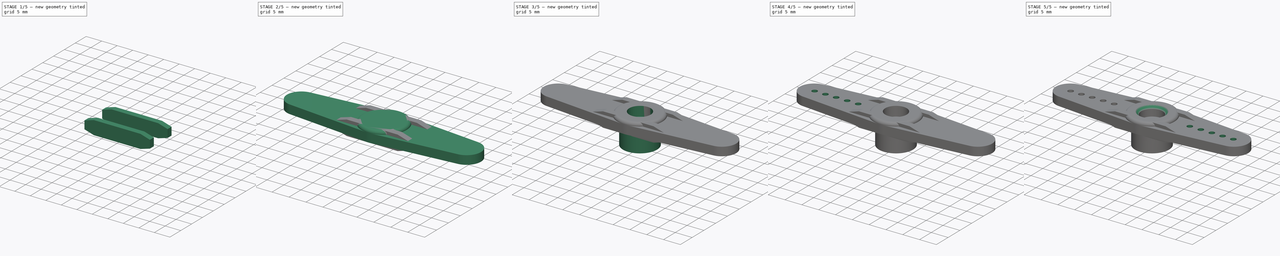
[diagram: build sequence overview — one tinted view per stage of 5, left to right]
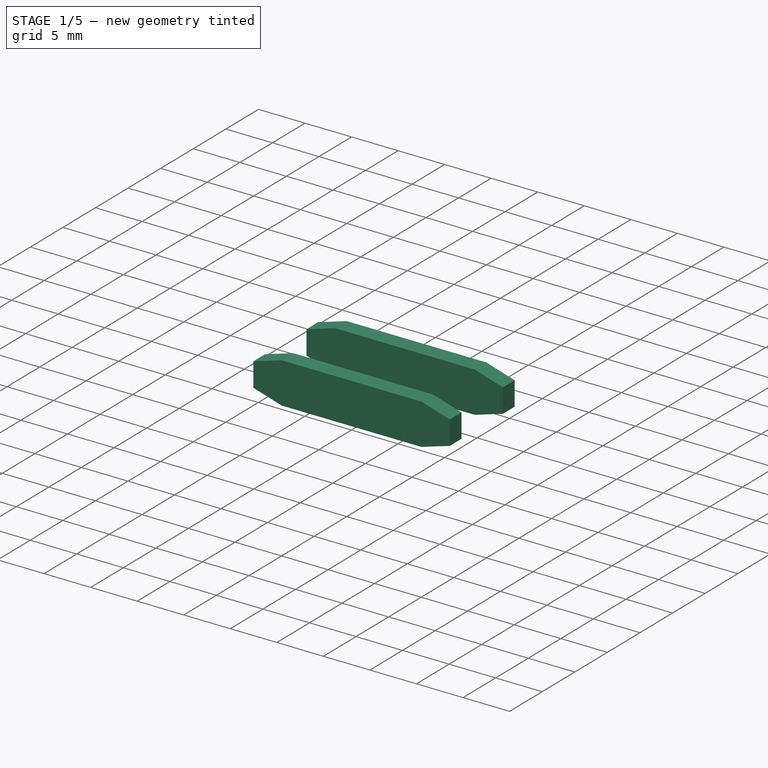
[diagram: stage 1 of 5 — iso view after this stage's code; geometry added in this stage tinted green]
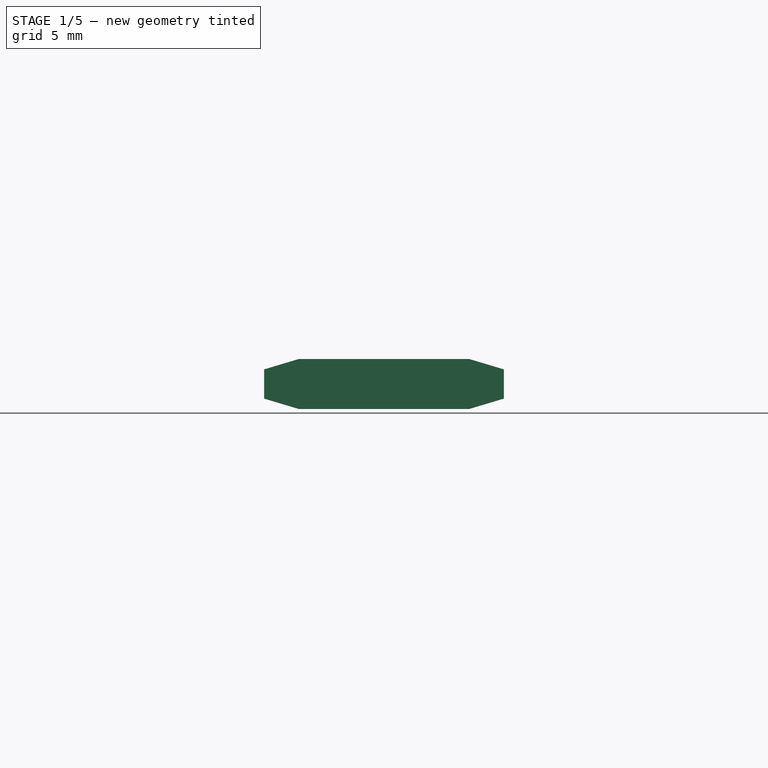
[diagram: stage 1 of 5 — front view after this stage's code; geometry added in this stage tinted green]
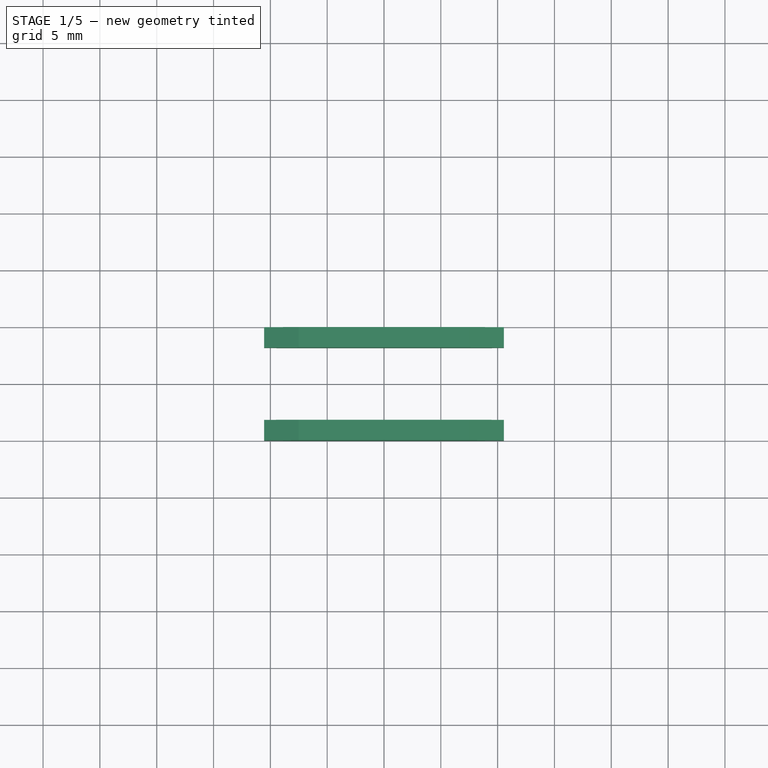
[diagram: stage 1 of 5 — top view after this stage's code; geometry added in this stage tinted green]
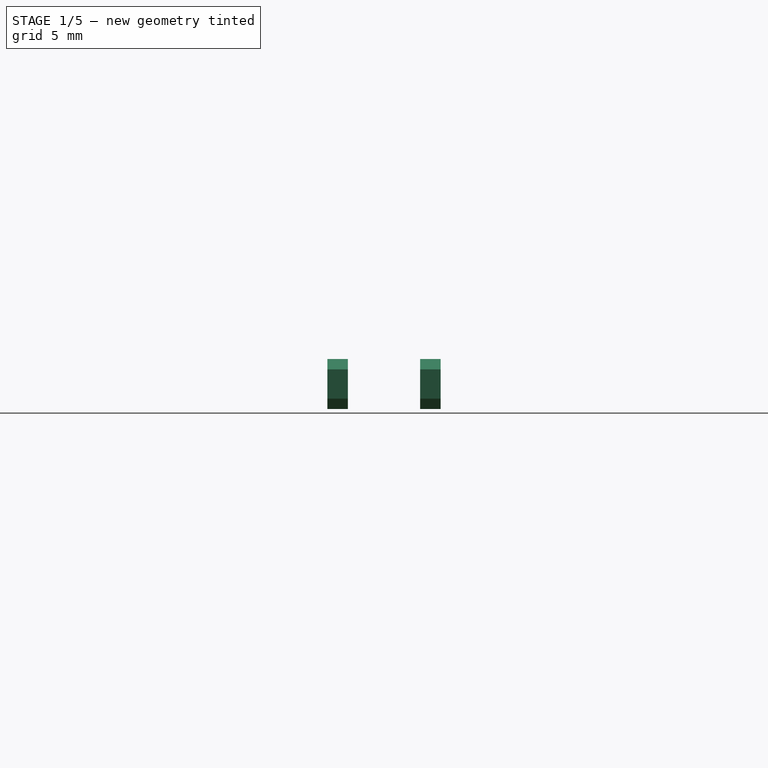
[diagram: stage 1 of 5 — right view after this stage's code; geometry added in this stage tinted green]
FCSTD DOCUMENT  (FreeCAD 0.14R3702 (Git))
Label: SM-S4303R-2-arms-big-horn
License: CC-BY 3.0
LicenseURL: http://creativecommons.org/licenses/by/3.0/
objects: Sketcher::SketchObject×8, PartDesign::Pad×4, PartDesign::Pocket×4, Part::MultiFuse×2, Part::Chamfer×2, Part::Fillet×1, Part::Mirroring×1, PartDesign::Mirrored×1
note: 31 computed .brp shape members not serialized (recipe doc carries the construction recipe); baked Part::Feature solids carry a one-line shape summary decoded from their .brp

FEATURE [Sketcher::SketchObject] Sketch003  label="top-reinforcement-1-sketch"
  Placement = pos=(0,3.18,0) rot=(1,0,0;1.5708rad)
  sketch-geometry (8):
    g0: LineSegment StartX=-7.5 StartY=2.2 StartZ=0 EndX=7.5 EndY=2.2 EndZ=0
    g1: LineSegment StartX=7.5 StartY=2.2 StartZ=0 EndX=10.55 EndY=1.285 EndZ=0
    g2: LineSegment StartX=10.55 StartY=1.285 StartZ=0 EndX=10.55 EndY=-1.285 EndZ=0
    g3: LineSegment StartX=10.55 StartY=-1.285 StartZ=0 EndX=7.5 EndY=-2.2 EndZ=0
    g4: LineSegment StartX=7.5 StartY=-2.2 StartZ=0 EndX=-7.5 EndY=-2.2 EndZ=0
    g5: LineSegment StartX=-7.5 StartY=-2.2 StartZ=0 EndX=-10.55 EndY=-1.285 EndZ=0
    g6: LineSegment StartX=-10.55 StartY=-1.285 StartZ=0 EndX=-10.55 EndY=1.285 EndZ=0
    g7: LineSegment StartX=-10.55 StartY=1.285 StartZ=0 EndX=-7.5 EndY=2.2 EndZ=0
  constraints (21):
    c: Coincident(g0,g1)
    c: Coincident(g1,g2)
    c: Vertical(g2)
    c: Coincident(g2,g3)
    c: Coincident(g3,g4)
    c: Horizontal(g4)
    c: Coincident(g4,g5)
    c: Coincident(g5,g6)
    c: Vertical(g6)
    c: Coincident(g6,g7)
    c: Coincident(g7,g0)
    c: Symmetric(g0,g0,g-2)
    c: Symmetric(g6,g1,g-2)
    c: Symmetric(g1,g2,g-1)
    c: Symmetric(g3,g0,g-1)
    c: Symmetric(g0,g4,g-1)
    c: Symmetric(g5,g6,g-1)
    c: DistanceX(g1,g6) = -21.1
    c: DistanceX(g0) = 15
    c: DistanceY(g2) = -2.57
    c: DistanceY(g-1,g0) = 2.2
FEATURE [PartDesign::Pad] Pad003  label="top-reinforcement-1"
  Length = 1.8
  Length2 = 100
  Placement = pos=(0,3.18,0) rot=(1,0,0;1.5708rad)
  Reversed = true
  Sketch = -> Sketch003
  Type = 0
FEATURE [Part::Mirroring] Part__Mirroring  label="bottom-reinforcement-1"
  Base = (0,0,0)
  Normal = (0,1,0)
  Source = -> Pad003
FEATURE [Part::MultiFuse] Fusion  label="reinforcements"
  Shapes = -> [Part__Mirroring,Pad003]
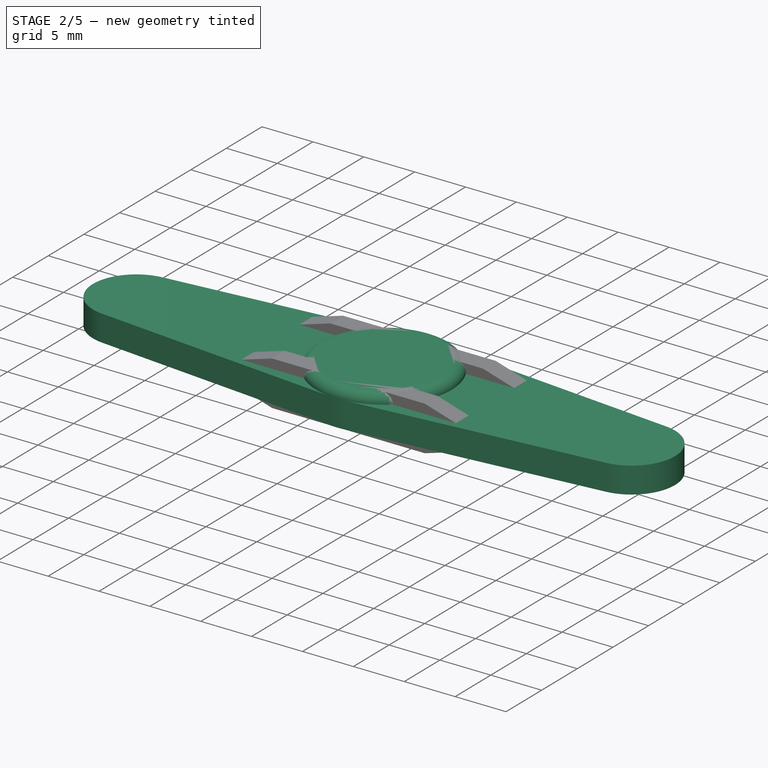
[diagram: stage 2 of 5 — iso view after this stage's code; geometry added in this stage tinted green]
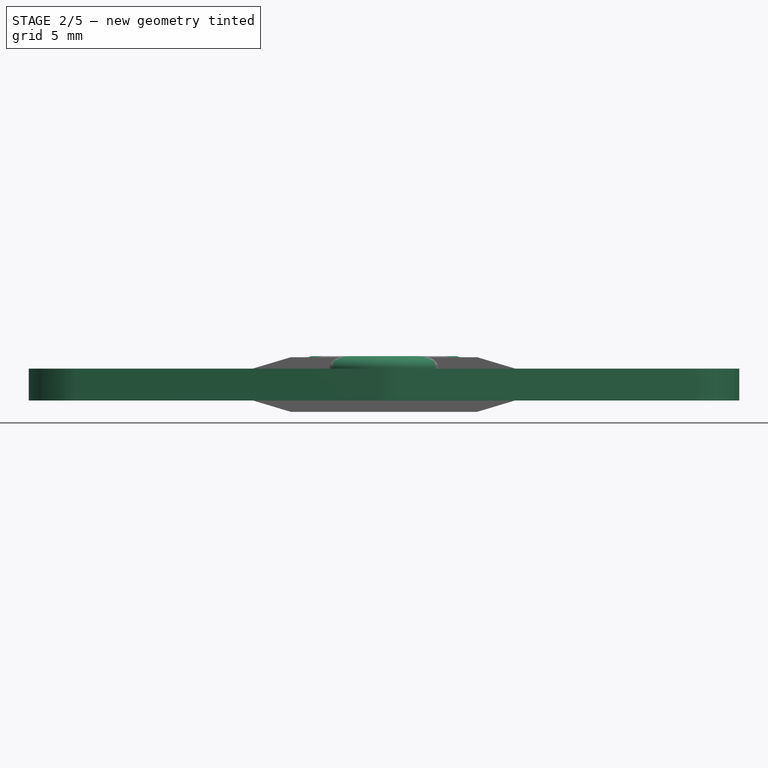
[diagram: stage 2 of 5 — front view after this stage's code; geometry added in this stage tinted green]
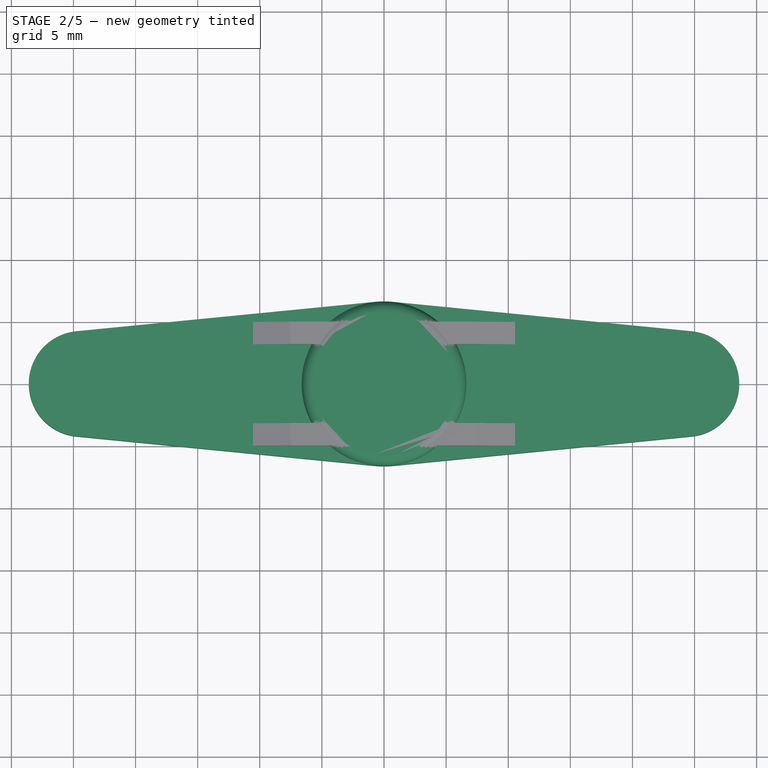
[diagram: stage 2 of 5 — top view after this stage's code; geometry added in this stage tinted green]
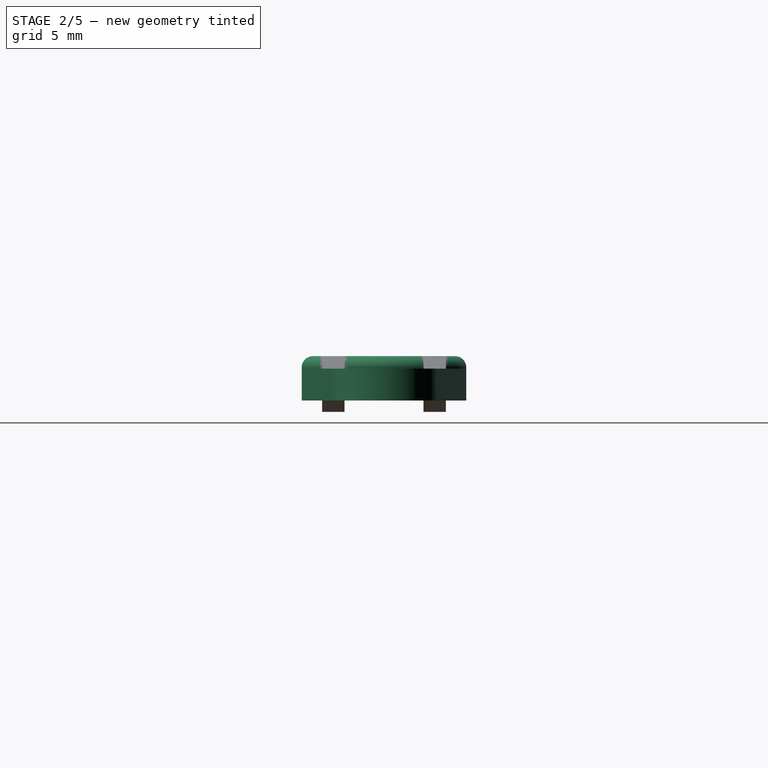
[diagram: stage 2 of 5 — right view after this stage's code; geometry added in this stage tinted green]
FEATURE [Sketcher::SketchObject] Sketch  label="horn-body-1-sketch"
  sketch-geometry (10):
    g0: LineSegment StartX=-0.782453 StartY=6.58664 StartZ=0 EndX=-24.7657 EndY=4.22962 EndZ=0
    g1: LineSegment StartX=-24.7657 StartY=-4.22962 StartZ=0 EndX=-0.782453 EndY=-6.58664 EndZ=0
    g2: ArcOfCircle CenterX=-24.35 CenterY=0 CenterZ=0 NormalX=0 NormalY=0 NormalZ=1 Radius=4.25 StartAngle=1.66876 EndAngle=4.61443
    g3: LineSegment StartX=0.782453 StartY=6.58664 StartZ=0 EndX=24.7657 EndY=4.22962 EndZ=0
    g4: LineSegment StartX=0.782453 StartY=-6.58664 StartZ=0 EndX=24.7657 EndY=-4.22962 EndZ=0
    g5: ArcOfCircle CenterX=24.35 CenterY=0 CenterZ=0 NormalX=0 NormalY=0 NormalZ=1 Radius=4.25 StartAngle=4.81035 EndAngle=7.75602
    g6: ArcOfCircle CenterX=0 CenterY=-1.375 CenterZ=0 NormalX=0 NormalY=0 NormalZ=1 Radius=8 StartAngle=1.47283 EndAngle=1.66876
    g7: ArcOfCircle CenterX=0 CenterY=1.375 CenterZ=0 NormalX=0 NormalY=0 NormalZ=1 Radius=8 StartAngle=4.61443 EndAngle=4.81035
    g8: LineSegment [constr] StartX=0 StartY=6.625 StartZ=0 EndX=0 EndY=-6.625 EndZ=0
    g9: LineSegment [constr] StartX=-28.6 StartY=0 StartZ=0 EndX=28.6 EndY=0 EndZ=0
  constraints (27):
    c: Tangent(g0,g2)
    c: Tangent(g1,g2)
    c: PointOnObject(g2,g-1)
    c: Tangent(g3,g5)
    c: Tangent(g4,g5)
    c: PointOnObject(g5,g-1)
    c: Equal(g5,g2)
    c: Radius(g2) = 4.25
    c: Symmetric(g2,g5,g-2)
    c: Tangent(g0,g6)
    c: Tangent(g3,g6)
    c: Tangent(g1,g7)
    c: Tangent(g4,g7)
    c: Symmetric(g6,g7,g-1)
    c: Equal(g6,g7)
    c: PointOnObject(g6,g-2)
    c: Vertical(g8)
    c: PointOnObject(g8,g-2)
    c: PointOnObject(g8,g7)
    c: PointOnObject(g8,g6)
    c: DistanceY(g8) = -13.25
    c: Radius(g6) = 8
    c: Horizontal(g9)
    c: PointOnObject(g9,g-1)
    c: PointOnObject(g9,g2)
    c: PointOnObject(g9,g5)
    c: DistanceX(g9) = 57.2
FEATURE [PartDesign::Pad] Pad  label="horn-body-1"
  Length = 2.57
  Length2 = 100
  Midplane = true
  Sketch = -> Sketch
  Type = 0
FEATURE [Sketcher::SketchObject] Sketch001  label="top-1-sketch"
  ExternalGeometry = -> [Pad]
  Placement = pos=(0,0,1.285) rot=(0,0,1;0rad)
  Support = -> Pad [Face10]
  sketch-geometry (1):
    g0: Circle CenterX=0 CenterY=0 CenterZ=0 NormalX=0 NormalY=0 NormalZ=1 Radius=6.625
  constraints (2):
    c: Tangent(g-3,g0)
    c: Coincident(g0,g-1)
FEATURE [PartDesign::Pad] Pad001  label="top-1"
  Length = 1
  Length2 = 100
  Sketch = -> Sketch001
  Type = 0
FEATURE [Part::Fillet] Fillet  label="horn-body-2"
  Base = -> Pad001
  Edges = 1 edges r=0.9: [Edge31]
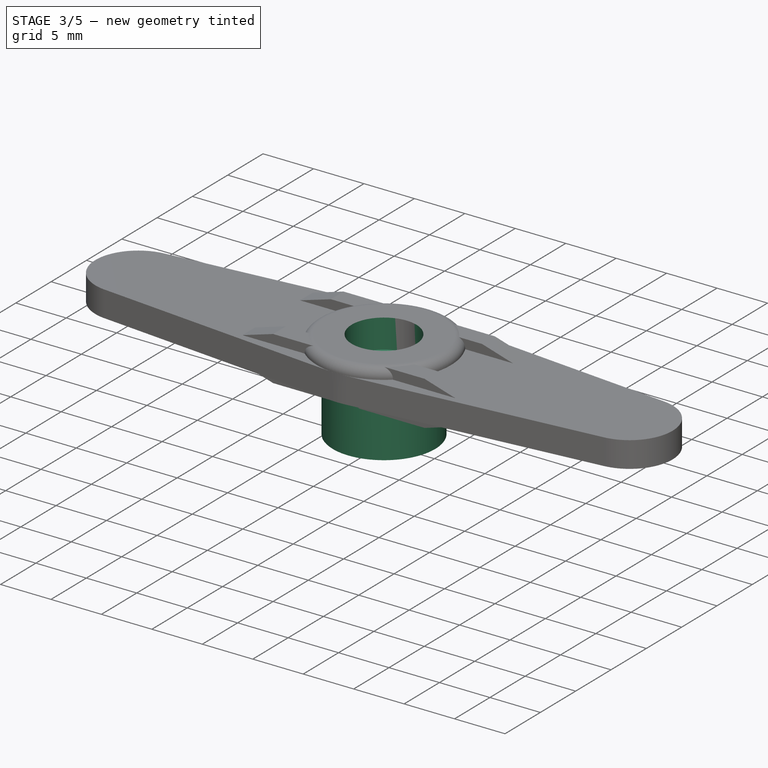
[diagram: stage 3 of 5 — iso view after this stage's code; geometry added in this stage tinted green]
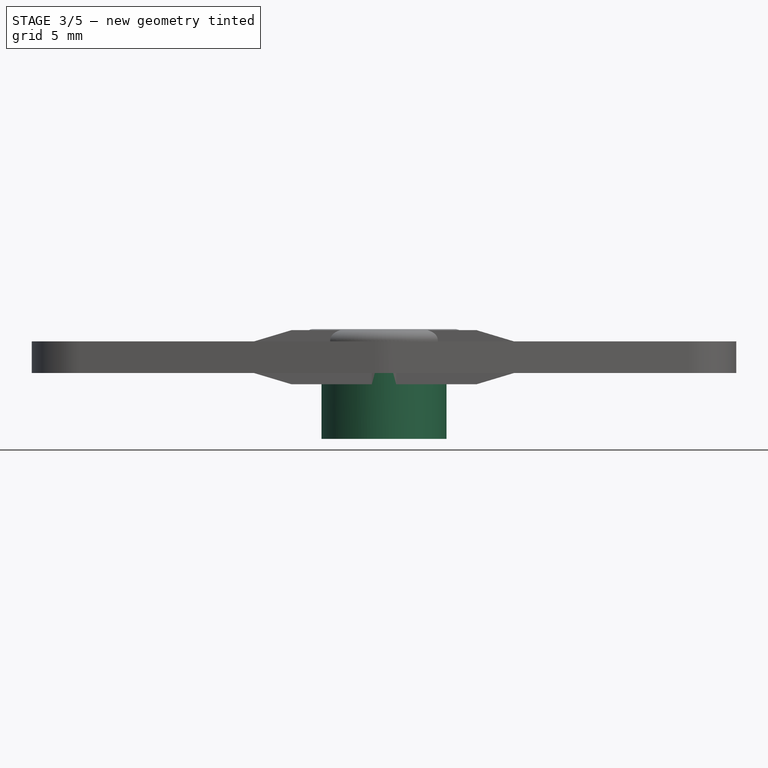
[diagram: stage 3 of 5 — front view after this stage's code; geometry added in this stage tinted green]
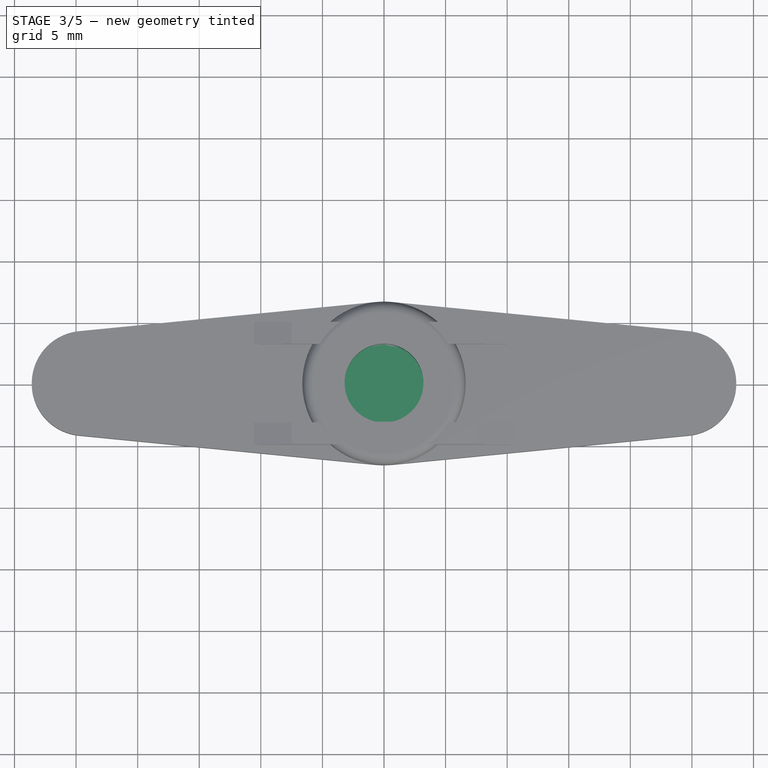
[diagram: stage 3 of 5 — top view after this stage's code; geometry added in this stage tinted green]
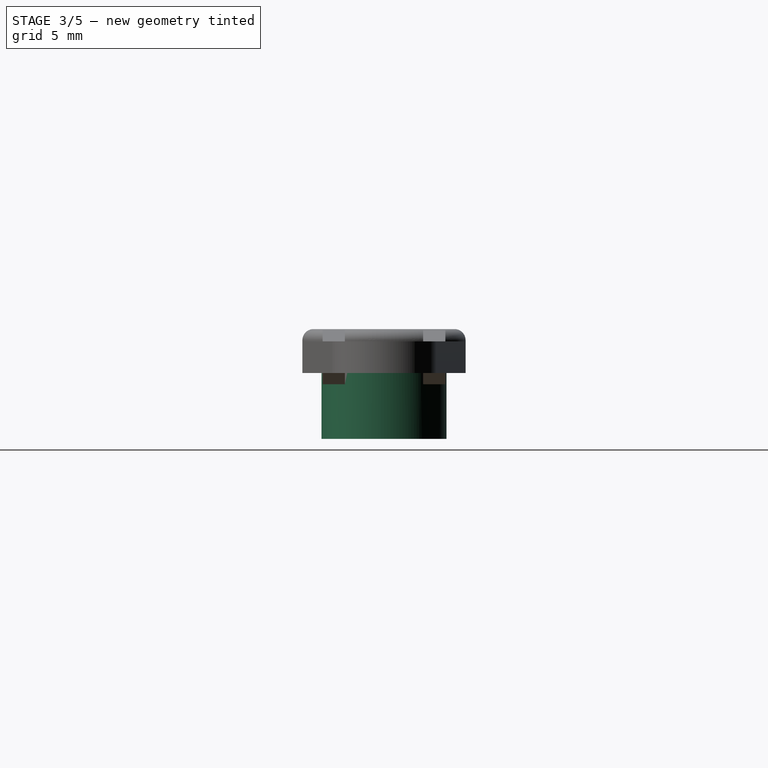
[diagram: stage 3 of 5 — right view after this stage's code; geometry added in this stage tinted green]
FEATURE [Sketcher::SketchObject] Sketch002  label="bottom-1-sketch"
  Placement = pos=(0,0,-1.285) rot=(1,0,0;3.14159rad)
  Support = -> Fillet [Face13]
  sketch-geometry (1):
    g0: Circle CenterX=0 CenterY=0 CenterZ=0 NormalX=0 NormalY=0 NormalZ=1 Radius=5.07767
  constraints (1):
    c: Coincident(g0,g-1)
FEATURE [PartDesign::Pad] Pad002  label="bottom-1"
  Length = 5.35
  Length2 = 100
  Sketch = -> Sketch002
  Type = 0
FEATURE [Part::MultiFuse] Fusion001  label="horn-body-3"
  Shapes = -> [Pad002,Fusion]
FEATURE [Sketcher::SketchObject] Sketch004  label="top-2-sketch"
  Placement = pos=(0,0,2.285) rot=(0,0,1;0rad)
  Support = -> Fusion001 [Face51]
  sketch-geometry (1):
    g0: Circle CenterX=0 CenterY=0 CenterZ=0 NormalX=0 NormalY=0 NormalZ=1 Radius=3.2
  constraints (2):
    c: Coincident(g0,g-1)
    c: Radius(g0) = 3.2
FEATURE [PartDesign::Pocket] Pocket  label="top-2"
  Length = 2.87
  Sketch = -> Sketch004
  Type = 0
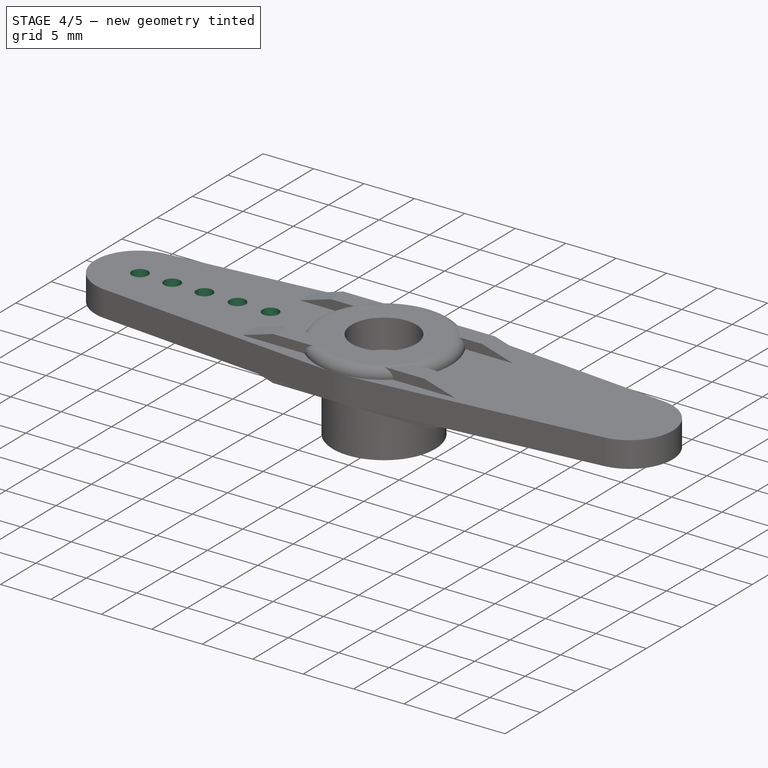
[diagram: stage 4 of 5 — iso view after this stage's code; geometry added in this stage tinted green]
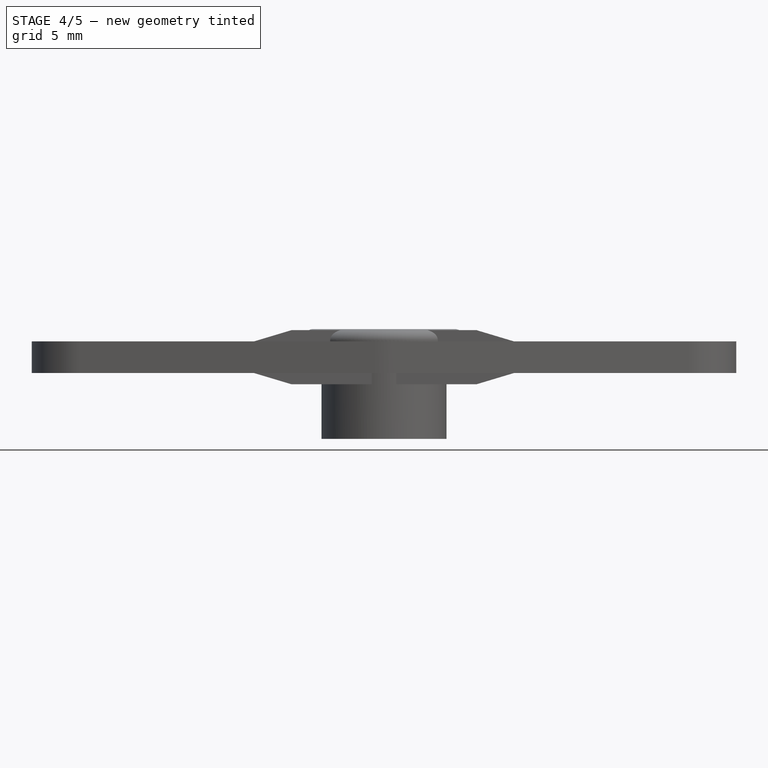
[diagram: stage 4 of 5 — front view after this stage's code; geometry added in this stage tinted green]
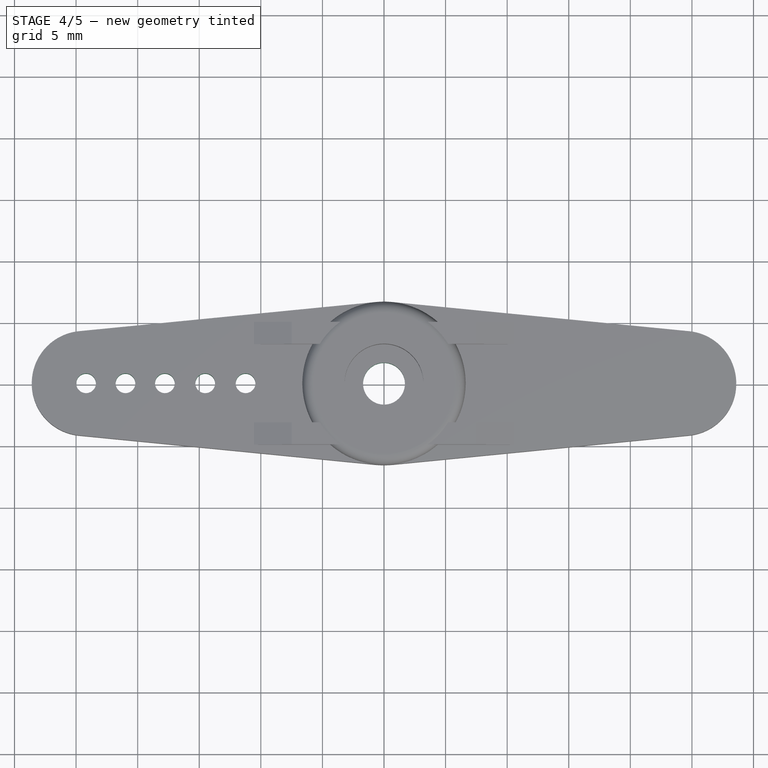
[diagram: stage 4 of 5 — top view after this stage's code; geometry added in this stage tinted green]
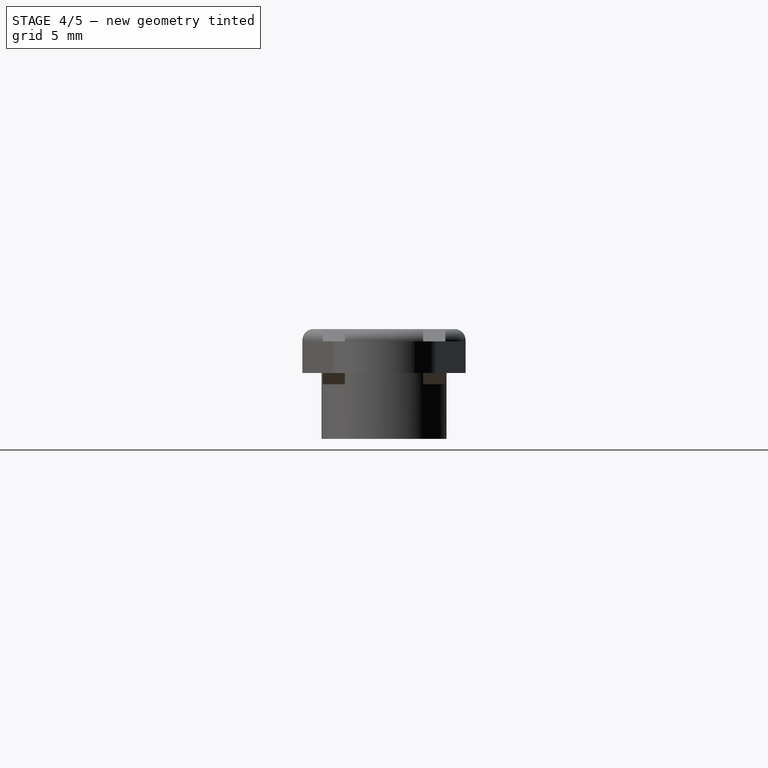
[diagram: stage 4 of 5 — right view after this stage's code; geometry added in this stage tinted green]
FEATURE [Sketcher::SketchObject] Sketch005  label="bottom-2-sketch"
  Placement = pos=(0,0,-6.635) rot=(1,0,0;3.14159rad)
  Support = -> Pocket [Face1]
  sketch-geometry (1):
    g0: Circle CenterX=0 CenterY=0 CenterZ=0 NormalX=0 NormalY=0 NormalZ=1 Radius=3
  constraints (2):
    c: Coincident(g0,g-1)
    c: Radius(g0) = 3
FEATURE [PartDesign::Pocket] Pocket001  label="bottom-2"
  Length = 4.06
  Sketch = -> Sketch005
  Type = 0
FEATURE [Sketcher::SketchObject] Sketch006  label="horn-screw-drill-sketch"
  Placement = pos=(0,0,-0.585) rot=(0,0,1;0rad)
  Support = -> Pocket001 [Face55]
  sketch-geometry (1):
    g0: Circle CenterX=0 CenterY=0 CenterZ=0 NormalX=0 NormalY=0 NormalZ=1 Radius=1.7
  constraints (2):
    c: Coincident(g0,g-1)
    c: Radius(g0) = 1.7
FEATURE [PartDesign::Pocket] Pocket002  label="horn-screw-drill"
  Length = 5
  Sketch = -> Sketch006
  Type = 1
FEATURE [Sketcher::SketchObject] Sketch007  label="horn-drills-left-sketch"
  Placement = pos=(0,0,1.285) rot=(0,0,1;0rad)
  Support = -> Pocket002 [Face31]
  sketch-geometry (9):
    g0: Circle CenterX=-24.19 CenterY=0 CenterZ=0 NormalX=0 NormalY=0 NormalZ=1 Radius=0.8
    g1: Circle CenterX=-20.99 CenterY=0 CenterZ=0 NormalX=0 NormalY=0 NormalZ=1 Radius=0.8
    g2: Circle CenterX=-17.79 CenterY=0 CenterZ=0 NormalX=0 NormalY=0 NormalZ=1 Radius=0.8
    g3: Circle CenterX=-14.515 CenterY=0 CenterZ=0 NormalX=0 NormalY=0 NormalZ=1 Radius=0.8
    g4: LineSegment [constr] StartX=-24.19 StartY=0 StartZ=0 EndX=-20.99 EndY=0 EndZ=0
    g5: LineSegment [constr] StartX=-20.99 StartY=0 StartZ=0 EndX=-17.79 EndY=0 EndZ=0
    g6: Circle CenterX=-11.24 CenterY=0 CenterZ=0 NormalX=0 NormalY=0 NormalZ=1 Radius=0.8
    g7: LineSegment [constr] StartX=-17.79 StartY=0 StartZ=0 EndX=-14.515 EndY=0 EndZ=0
    g8: LineSegment [constr] StartX=-14.515 StartY=0 StartZ=0 EndX=-11.24 EndY=0 EndZ=0
  constraints (24):
    c: PointOnObject(g0,g-1)
    c: Radius(g0) = 0.8
    c: DistanceX(g-1,g0) = -24.19
    c: Equal(g0,g1)
    c: Equal(g2,g3)
    c: Horizontal(g4)
    c: Coincident(g4,g0)
    c: Coincident(g4,g1)
    c: Horizontal(g5)
    c: Coincident(g5,g1)
    c: Coincident(g5,g2)
    c: PointOnObject(g6,g-1)
    c: Horizontal(g7)
    c: Coincident(g7,g2)
    c: Coincident(g7,g3)
    c: Horizontal(g8)
    c: Coincident(g8,g3)
    c: Coincident(g8,g6)
    c: Equal(g4,g5)
    c: DistanceX(g4) = 3.2
    c: Equal(g1,g2)
    c: Equal(g3,g6)
    c: DistanceX(g0,g6) = 12.95
    c: Equal(g7,g8)
FEATURE [PartDesign::Pocket] Pocket003  label="horn-drills-left"
  Length = 5
  Sketch = -> Sketch007
  Type = 1
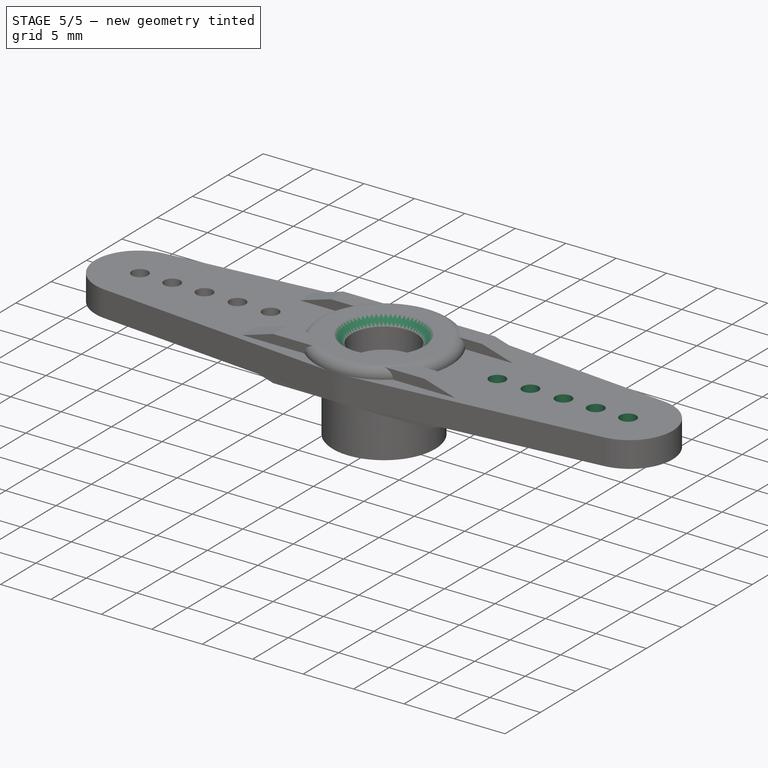
[diagram: stage 5 of 5 — iso view after this stage's code; geometry added in this stage tinted green]
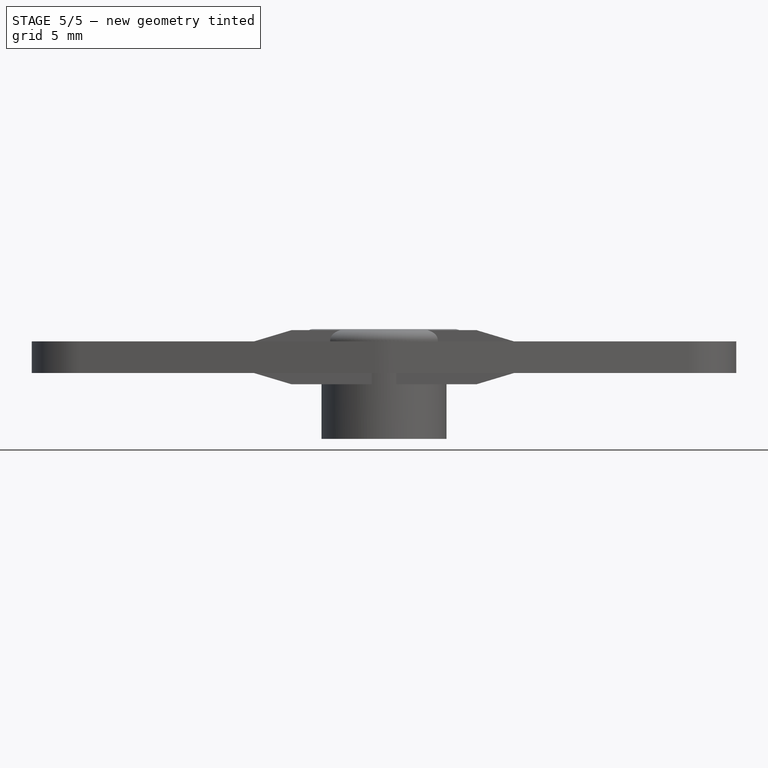
[diagram: stage 5 of 5 — front view after this stage's code; geometry added in this stage tinted green]
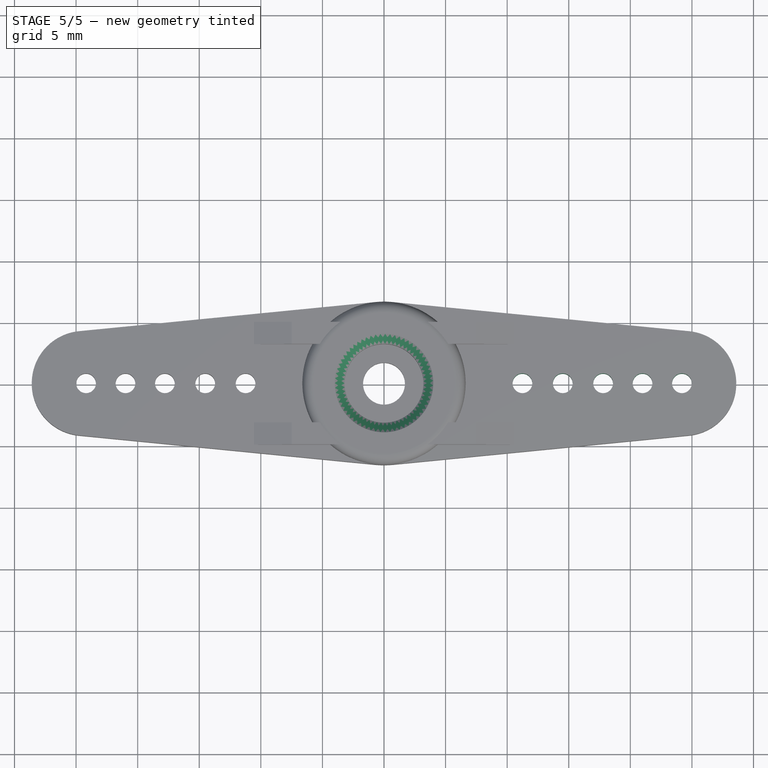
[diagram: stage 5 of 5 — top view after this stage's code; geometry added in this stage tinted green]
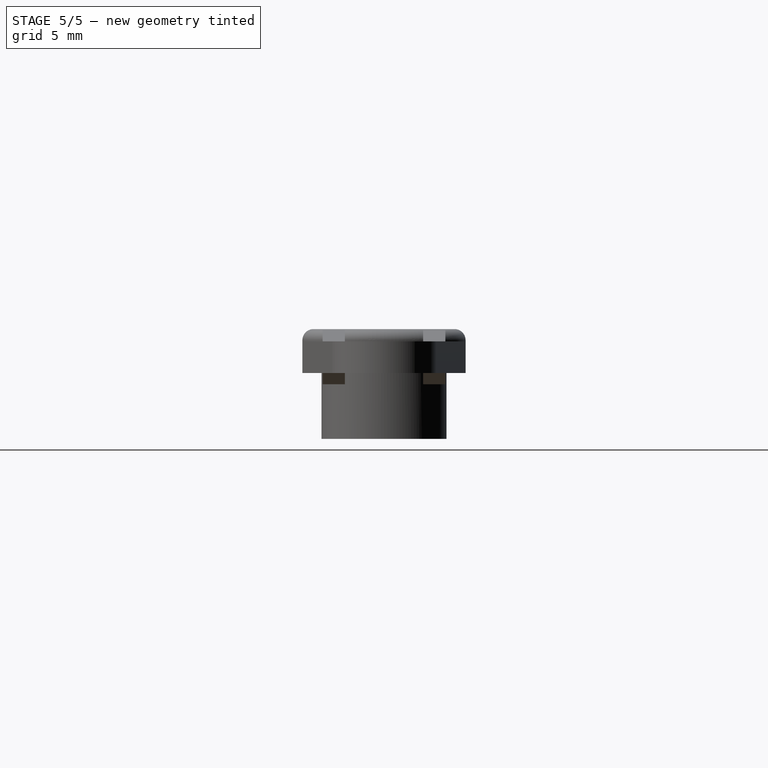
[diagram: stage 5 of 5 — right view after this stage's code; geometry added in this stage tinted green]
FEATURE [PartDesign::Mirrored] Mirrored  label="horn-drills"
  MirrorPlane = -> Sketch007 [V_Axis]
  Originals = -> [Pocket003]
FEATURE [Part::Chamfer] Chamfer
  Base = -> Mirrored
  Edges = 1 edges r=0.8: [Edge176]
FEATURE [Part::Chamfer] Chamfer001  label="horn-final"
  Base = -> Chamfer
  Edges = 1 edges r=0.2: [Edge73]
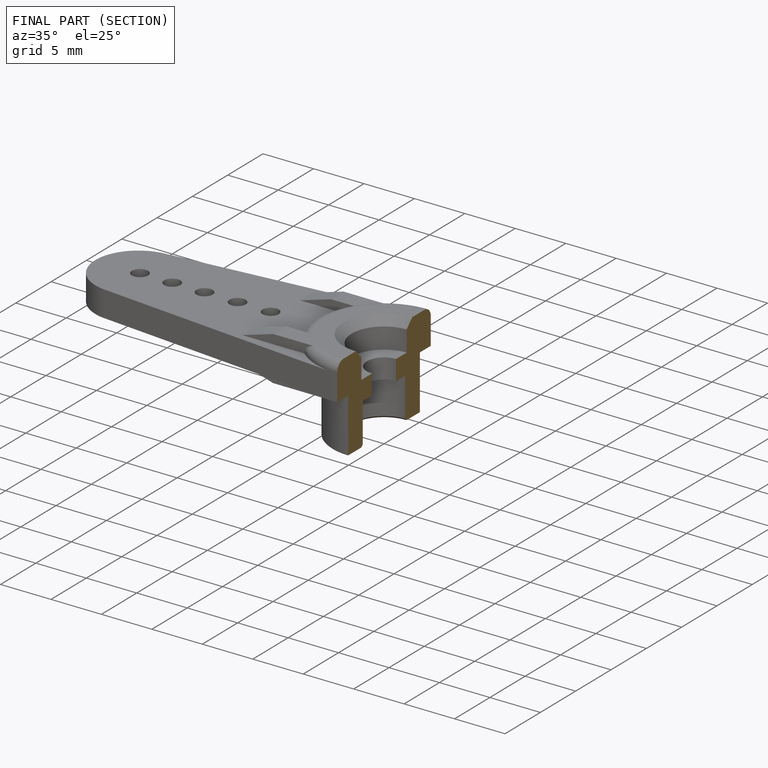
[diagram: finished part — half-section view (interior)]
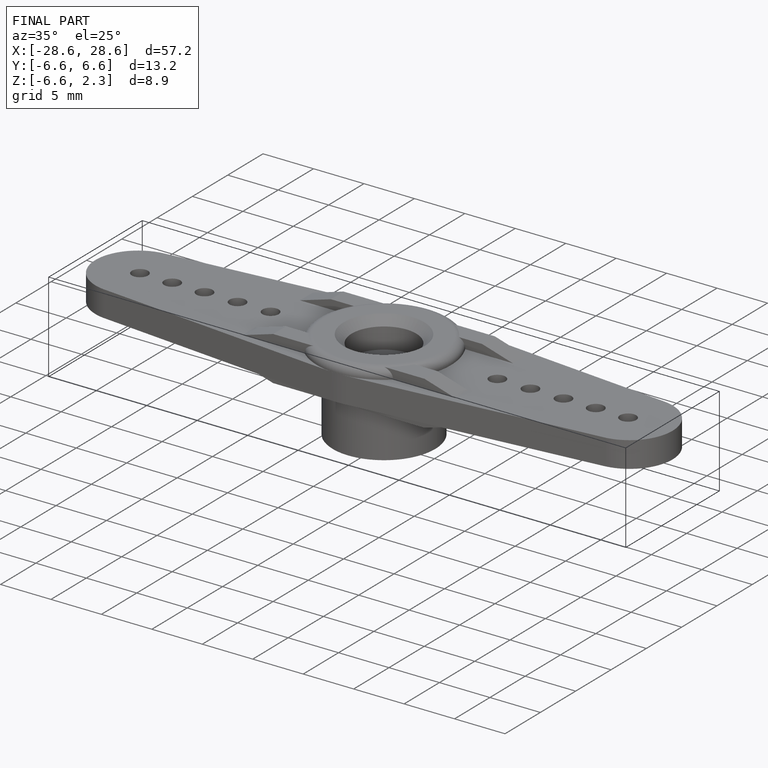
[diagram: finished part — iso view with bounding-box wireframe]
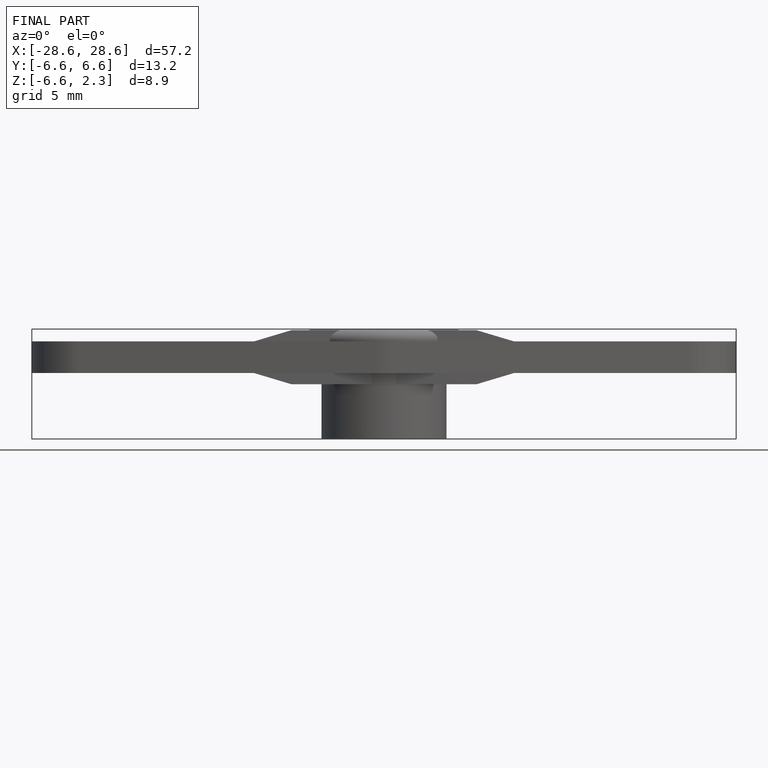
[diagram: finished part — front view with bounding-box wireframe]
